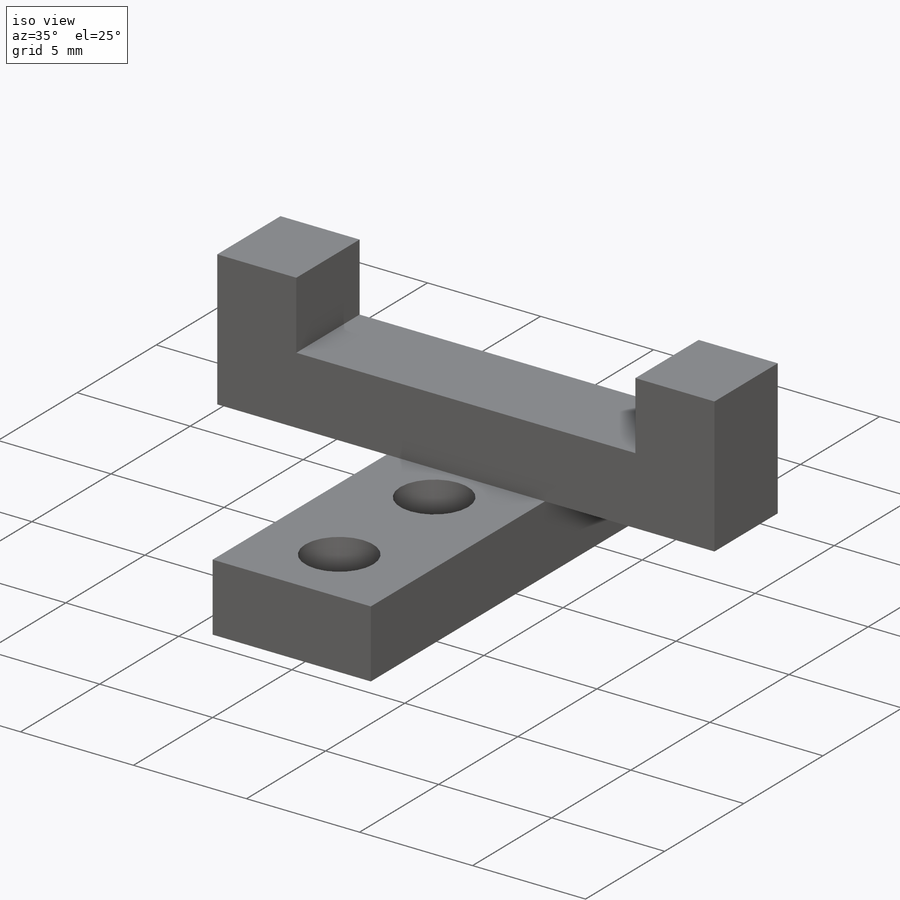
[diagram: iso view]
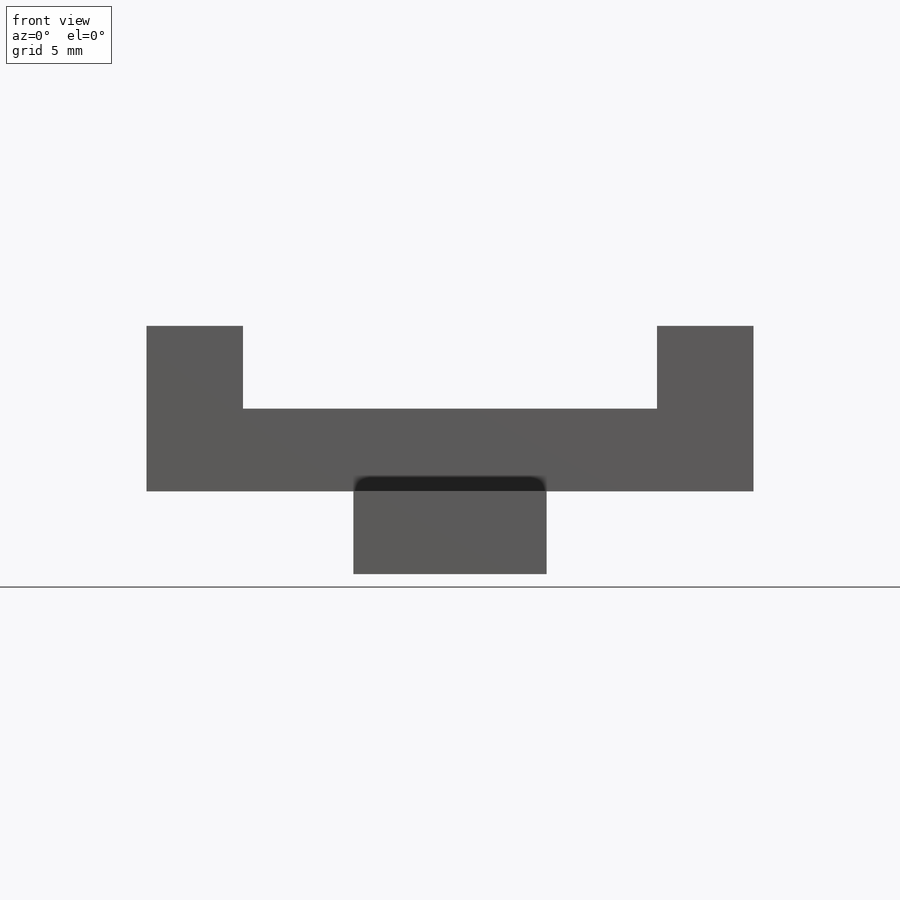
[diagram: front view]
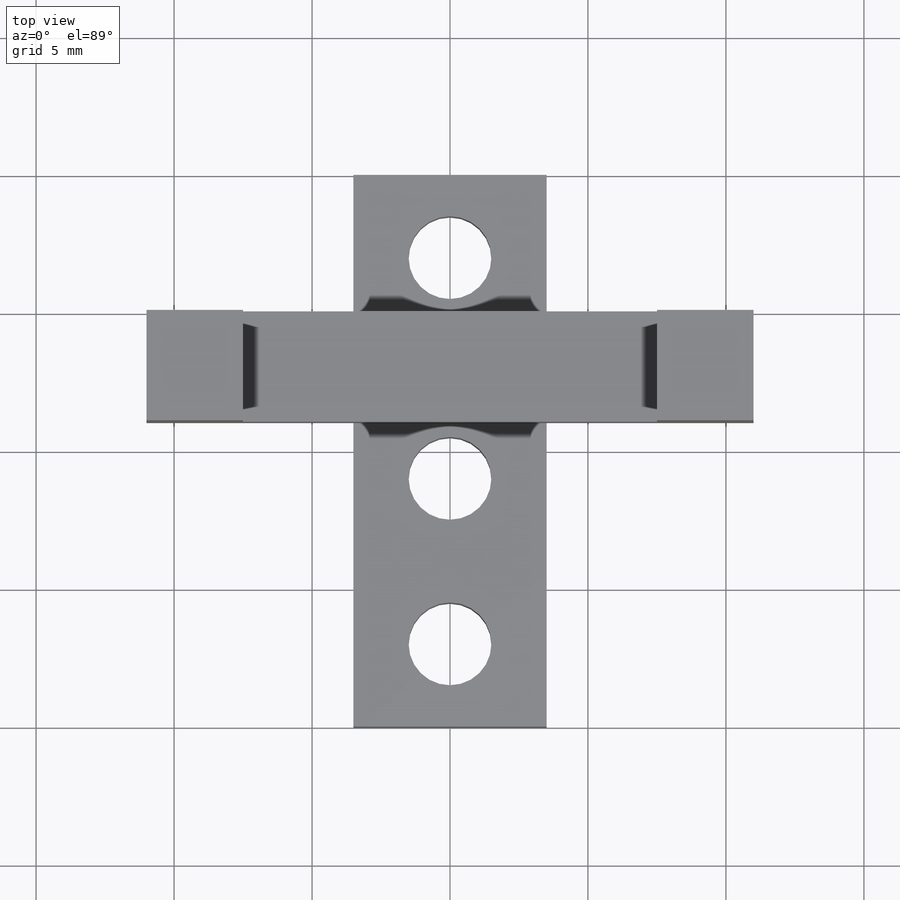
[diagram: top view]
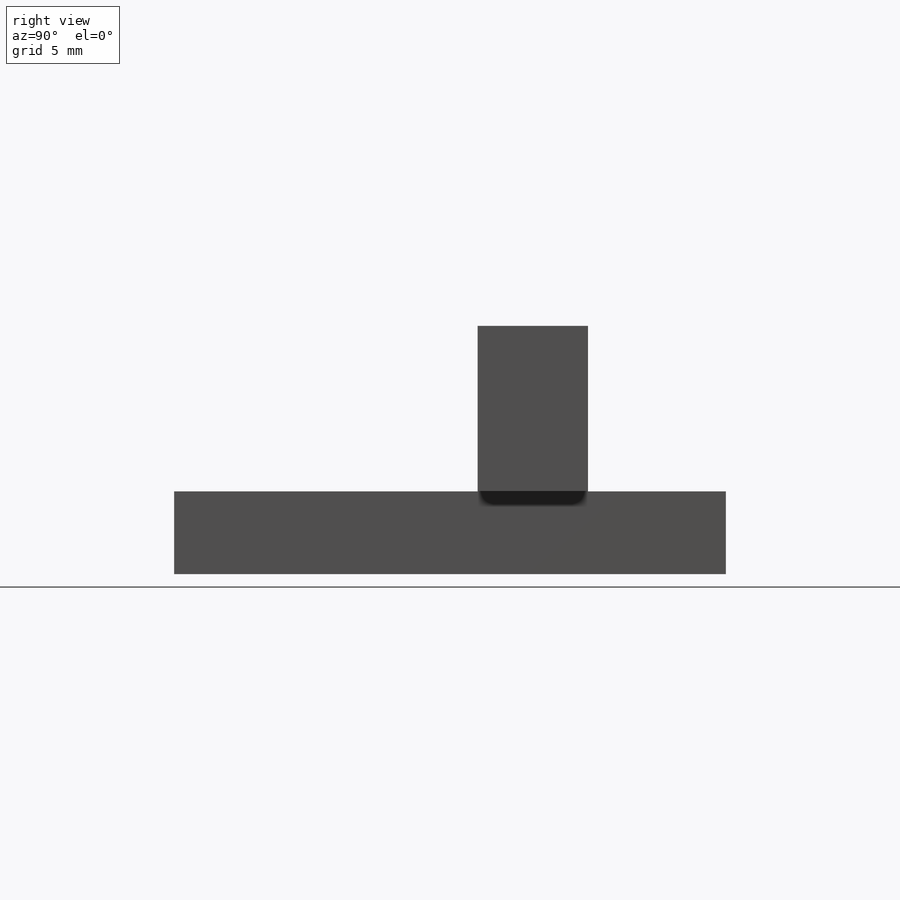
[diagram: right view]
SOLIDWORKS PART (.sldprt)
format: sldprt  version: not decoded by parser v0  size: 203,776 bytes
history: native  units: mm
features: sketch x8, extrude x4, material x1, hole x1, cut_extrude x1 (+16 scaffold rows collapsed)
feature tree (31):
  scaffold x16  (default folders/planes/origin — collapsed)
  material  "Material <not specified>"
  sketch  "Sketch2"  dims[D1=7.0mm D2=20.0mm]
  extrude  "Extrude2"  Depth=3mm
  sketch  "Sketch3"
  hole  "Ø3.0 (3) Diameter Hole1"  Diameter=3mm Depth=10mm
  sketch  "3DSketch1"  dims[D1=3.0mm D2=3.0mm D3=6.0mm]
  sketch  "Sketch5"  dims[hole-wizard template sketch: 50 standard entries collapsed; hole parameters above]
  sketch  "Sketch6"  dims[D1=5.0mm D2=4.0mm]
  extrude  "Extrude3"  Depth=6mm
  sketch  "Sketch7"
  extrude  "Extrude4"  Depth=7.5mm
  sketch  "Sketch8"
  extrude  "Extrude5"  Depth=7.5mm
  sketch  "Sketch10"  dims[D1=15.0mm D2=3.5mm]
  cut_extrude  "Extrude6"  Depth=3mm
decode coverage: 11 of 14 modeling features carry decoded parameters
note: ~ marks probable driven/reference dimensions
note: suppression state not decoded; provenance and decode notes live in map.json
